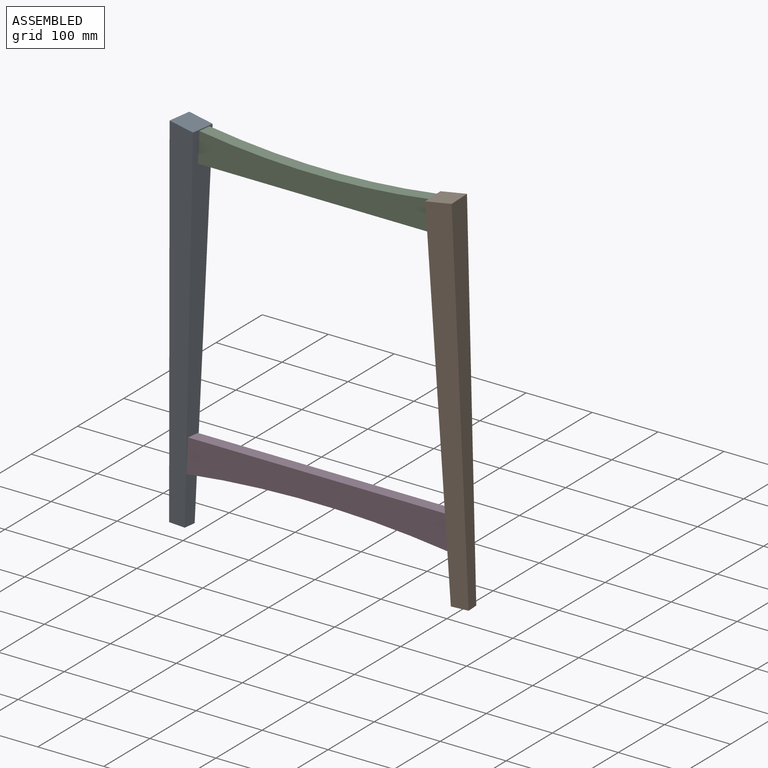
[diagram: assembled view]
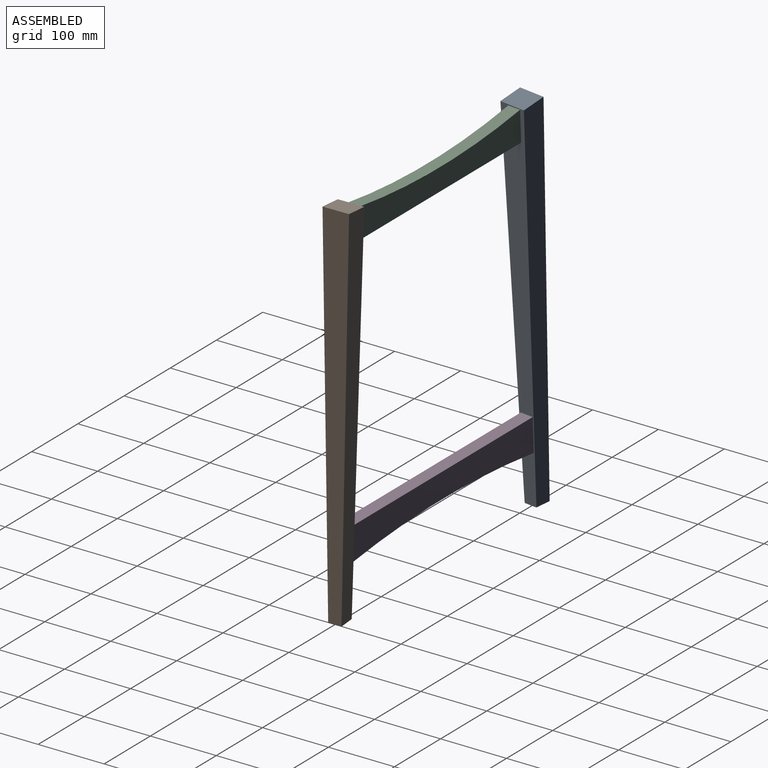
[diagram: assembled view, second angle]
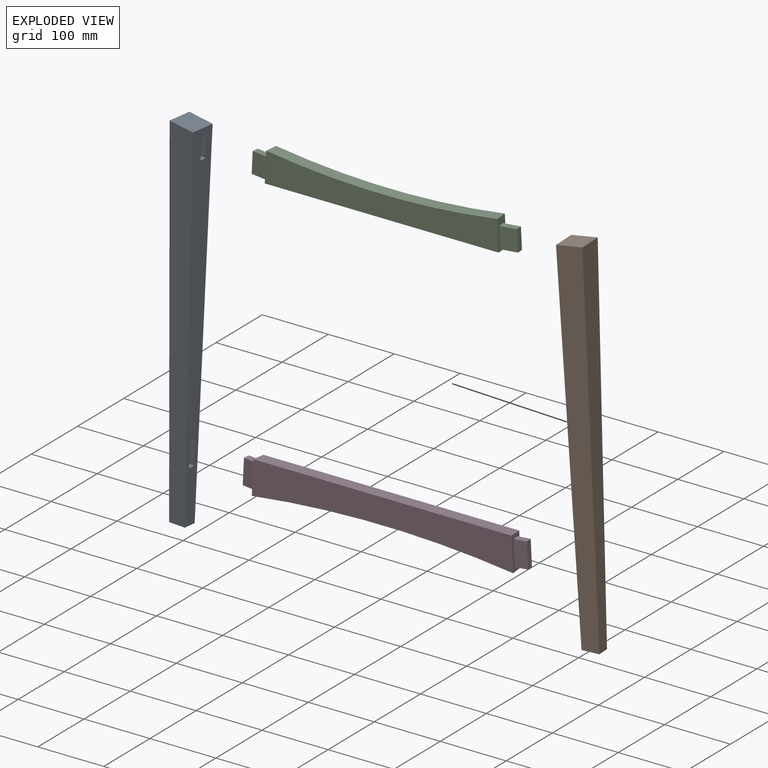
[diagram: exploded view]
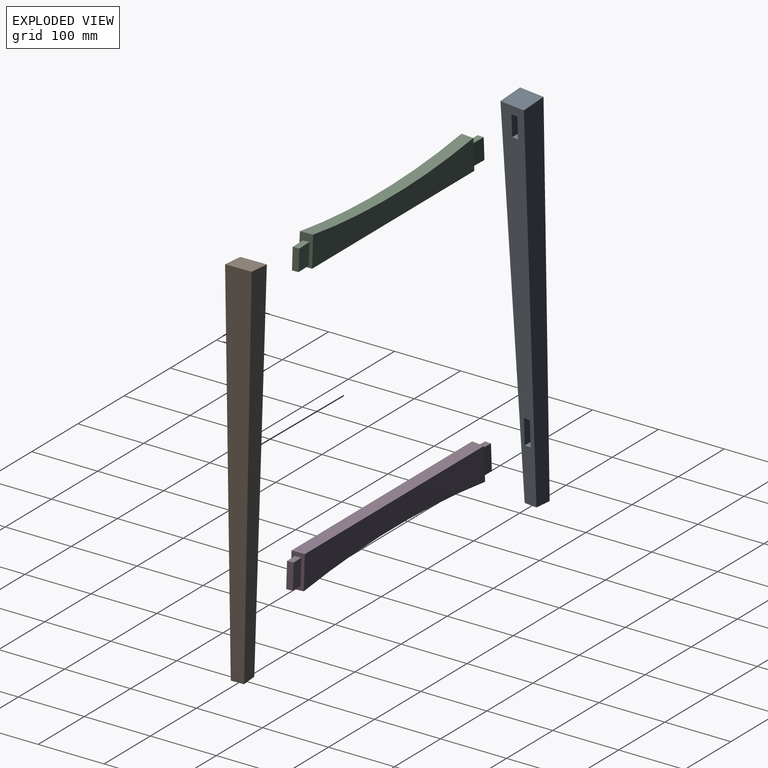
[diagram: exploded view, second angle]
ASSEMBLY  parts=4 mates=3
PART A: 16 faces, bbox 38.1x38.1x561.2 mm
  f0: plane 559.85x38.07mm, normal (-1,0,0), area 17686.5mm2, adj f1,f3,f4,f15
  f1: plane 25.41x19.11mm, normal (0.03,0.05,-1), area 485.8mm2, adj f0,f2,f3,f15
  f2: plane 560.68x38.1mm, normal (1,0,-0.03), area 17734.5mm2, adj f1,f3,f4,f15
  f3: plane 556.51x37.99mm, normal (0,1,0), area 15188mm2, adj f0,f1,f2,f4,f5,f6,f7,f8
  f4: plane 38.1x38.1mm, normal (-0.03,0.09,1), area 1455.3mm2, adj f0,f2,f3,f15
  f5: plane 26.99x9.53mm, normal (0,0,-1), area 257.1mm2, adj f3,f6,f8,f9
  f6: plane 31.75x26.99mm, normal (1,0,0), area 856.9mm2, adj f3,f5,f7,f9
  f7: plane 26.99x9.53mm, normal (0,0,1), area 257.1mm2, adj f3,f6,f8,f9
  f8: plane 31.75x26.99mm, normal (-1,0,0), area 856.9mm2, adj f3,f5,f7,f9
  f9: plane 31.75x9.53mm, normal (0,1,0), area 302.4mm2, adj f5,f6,f7,f8
  f10: plane 20.64x9.53mm, normal (0,0,-1), area 196.6mm2, adj f3,f11,f13,f14
  f11: plane 38.1x20.64mm, normal (1,0,0), area 786.3mm2, adj f3,f10,f12,f14
  f12: plane 20.64x9.53mm, normal (0,0,1), area 196.6mm2, adj f3,f11,f13,f14
  f13: plane 38.1x20.64mm, normal (-1,0,0), area 786.3mm2, adj f3,f10,f12,f14
  f14: plane 38.1x9.53mm, normal (0,1,0), area 362.9mm2, adj f10,f11,f12,f13
  f15: plane 561.18x38.1mm, normal (0,-1,-0.02), area 16009.8mm2, adj f0,f1,f2,f4
PART B: 16 faces, bbox 38.1x38.1x561.2 mm
  f0: plane 559.85x38.07mm, normal (-1,0,0), area 17686.5mm2, adj f1,f3,f4,f15
  f1: plane 25.41x19.11mm, normal (0.03,-0.05,-1), area 485.8mm2, adj f0,f2,f3,f15
  f2: plane 560.68x38.1mm, normal (1,0,-0.03), area 17734.5mm2, adj f1,f3,f4,f15
  f3: plane 556.51x37.99mm, normal (0,-1,0), area 15188mm2, adj f0,f1,f2,f4,f5,f6,f7,f8
  f4: plane 38.1x38.1mm, normal (-0.03,-0.09,1), area 1455.3mm2, adj f0,f2,f3,f15
  f5: plane 26.99x9.53mm, normal (0,0,-1), area 257.1mm2, adj f3,f6,f8,f9
  f6: plane 31.75x26.99mm, normal (1,0,0), area 856.9mm2, adj f3,f5,f7,f9
  f7: plane 26.99x9.53mm, normal (0,0,1), area 257.1mm2, adj f3,f6,f8,f9
  f8: plane 31.75x26.99mm, normal (-1,0,0), area 856.9mm2, adj f3,f5,f7,f9
  f9: plane 31.75x9.53mm, normal (0,-1,0), area 302.4mm2, adj f5,f6,f7,f8
  f10: plane 20.64x9.53mm, normal (0,0,-1), area 196.6mm2, adj f3,f11,f13,f14
  f11: plane 38.1x20.64mm, normal (1,0,0), area 786.3mm2, adj f3,f10,f12,f14
  f12: plane 20.64x9.53mm, normal (0,0,1), area 196.6mm2, adj f3,f11,f13,f14
  f13: plane 38.1x20.64mm, normal (-1,0,0), area 786.3mm2, adj f3,f10,f12,f14
  f14: plane 38.1x9.53mm, normal (0,-1,0), area 362.9mm2, adj f10,f11,f12,f13
  f15: plane 561.18x38.1mm, normal (0,1,-0.02), area 16009.8mm2, adj f0,f1,f2,f4
PART C: 16 faces, bbox 404x19.1x46 mm
  f0: plane 354.59x45.44mm, normal (0,-1,0), area 13043.1mm2, adj f2,f3,f9,f15
  f1: plane 351.25x45.79mm, normal (0,1,0), area 13099.3mm2, adj f2,f3,f9,f15
  f2: plane 46.04x19.05mm, normal (-0.99,0.09,0.05), area 571.1mm2, adj f0,f1,f3,f4,f5,f6,f7,f15
  f3: plane 354.59x19.05mm, normal (0,-0.03,-1), area 6726.4mm2, adj f0,f1,f2,f9
  f4: plane 26.11x11.74mm, normal (0.05,0,1), area 241.9mm2, adj f2,f5,f7,f8
  f5: plane 32.95x26.83mm, normal (0.09,1,0), area 806.4mm2, adj f2,f4,f6,f8
  f6: plane 26.11x11.74mm, normal (-0.05,0,-1), area 241.9mm2, adj f2,f5,f7,f8
  f7: plane 32.95x26.83mm, normal (-0.09,-1,0), area 806.5mm2, adj f2,f4,f6,f8
  f8: plane 31.75x9.49mm, normal (-0.99,0.09,0.05), area 302.4mm2, adj f4,f5,f6,f7
  f9: plane 46.04x19.05mm, normal (0.99,0.09,0.05), area 571.1mm2, adj f0,f1,f3,f10,f11,f12,f13,f15
  f10: plane 26.11x11.74mm, normal (-0.05,0,1), area 241.9mm2, adj f9,f11,f13,f14
  f11: plane 32.95x26.83mm, normal (-0.09,1,0), area 806.4mm2, adj f9,f10,f12,f14
  f12: plane 26.11x11.74mm, normal (0.05,0,-1), area 241.9mm2, adj f9,f11,f13,f14
  f13: plane 32.95x26.83mm, normal (0.09,-1,0), area 806.5mm2, adj f9,f10,f12,f14
  f14: plane 31.75x9.49mm, normal (0.99,0.09,0.05), area 302.4mm2, adj f10,f11,f12,f13
  f15: cylinder r=1212.92mm len=350.13mm, axis (0,-1,0), area 6660.8mm2, adj f0,f1,f2,f9
PART D: 16 faces, bbox 432.6x19.1x50.8 mm
  f0: plane 50.8x19.05mm, normal (-0.99,0.09,0.05), area 602mm2, adj f1,f2,f3,f4,f5,f6,f7,f15
  f1: plane 391.19x19.05mm, normal (0,0.03,1), area 7424mm2, adj f0,f2,f3,f9
  f2: plane 396.16x50.8mm, normal (0,-1,0), area 16641.8mm2, adj f0,f1,f9,f15
  f3: plane 392.73x49.98mm, normal (0,1,0), area 16237.1mm2, adj f0,f1,f9,f15
  f4: plane 19.8x11.18mm, normal (0.05,0,1), area 181.5mm2, adj f0,f5,f7,f8
  f5: plane 38.98x20.81mm, normal (0.09,1,0), area 725.8mm2, adj f0,f4,f6,f8
  f6: plane 19.8x11.18mm, normal (-0.05,0,-1), area 181.5mm2, adj f0,f5,f7,f8
  f7: plane 38.98x20.81mm, normal (-0.09,-1,0), area 725.8mm2, adj f0,f4,f6,f8
  f8: plane 38.1x9.49mm, normal (-0.99,0.09,0.05), area 362.9mm2, adj f4,f5,f6,f7
  f9: plane 50.8x19.05mm, normal (0.99,0.09,0.05), area 602mm2, adj f1,f2,f3,f10,f11,f12,f13,f15
  f10: plane 19.8x11.18mm, normal (-0.05,0,1), area 181.5mm2, adj f9,f11,f13,f14
  f11: plane 38.98x20.81mm, normal (-0.09,1,0), area 725.8mm2, adj f9,f10,f12,f14
  f12: plane 19.8x11.18mm, normal (0.05,0,-1), area 181.5mm2, adj f9,f11,f13,f14
  f13: plane 38.98x20.81mm, normal (0.09,-1,0), area 725.8mm2, adj f9,f10,f12,f14
  f14: plane 38.1x9.49mm, normal (0.99,0.09,0.05), area 362.9mm2, adj f10,f11,f12,f13
  f15: cylinder r=1551.06mm len=396.16mm, axis (0,-1,0), area 7534.6mm2, adj f0,f2,f3,f9
PLACE A rot(axis=(-0.02,0.02,-1),95.1deg) t=(-220.7,8.02,-507.33)mm
PLACE B rot(axis=(0.02,-0.03,-1),84.9deg) t=(220.7,8.02,-507.33)mm
PLACE C at identity fixed
PLACE D rot(axis=(0.02,0.88,0.48),0deg) t=(-0.04,23.81,-438.04)mm
MATE fastened D.f0 <-> A.f3  axis (-0.99,0.09,0.05) through (-194.66,18.97,-387.01)mm
MATE fastened B.f3 <-> C.f9  axis (-0.99,-0.09,-0.05) through (174.34,14.23,35.57)mm
MATE fastened C.f2 <-> A.f3  axis (-0.99,0.09,0.05) through (-175.18,4.74,35.61)mm
